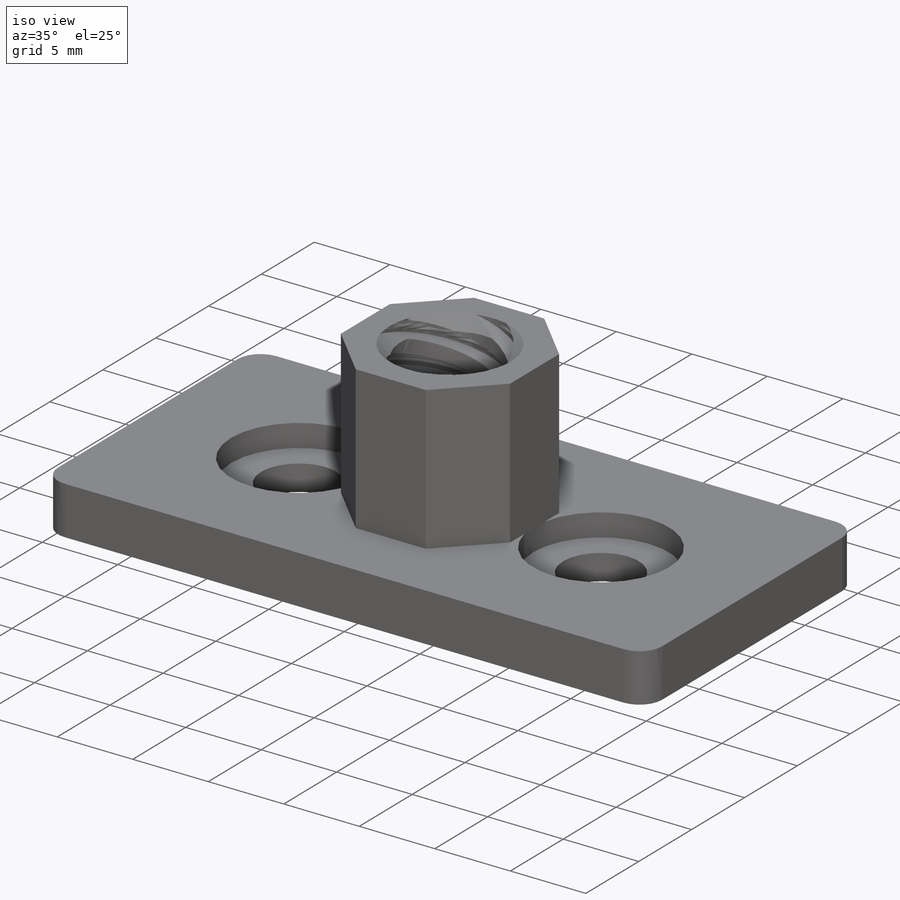
[diagram: iso view]
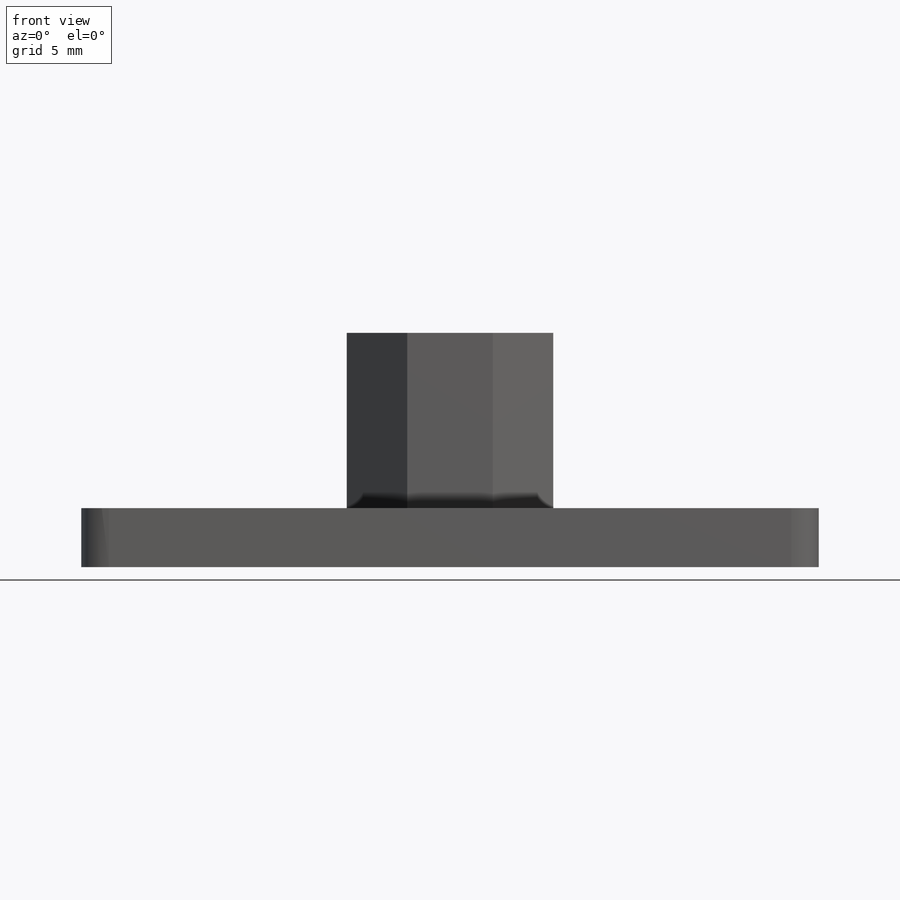
[diagram: front view]
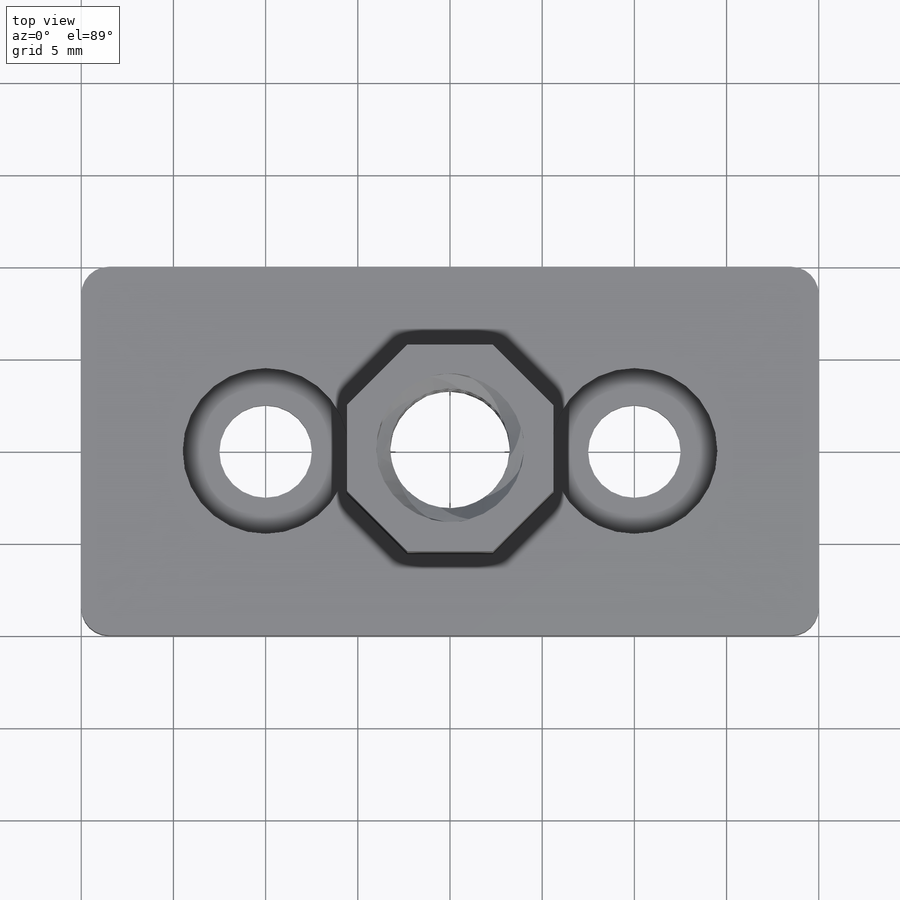
[diagram: top view]
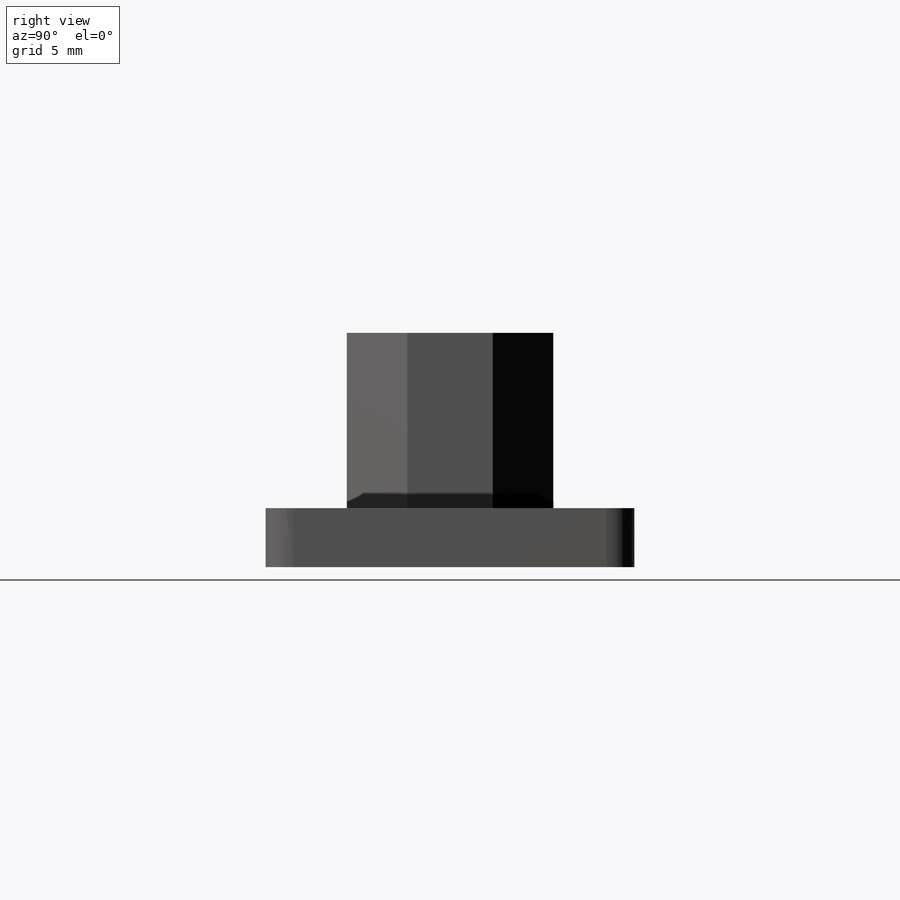
[diagram: right view]
SOLIDWORKS PART (.sldprt)
format: sldprt  version: not decoded by parser v0  size: 454,656 bytes
history: native  units: mm
features: sketch x7, cut_extrude x3, extrude x2, chamfer x2, material x1, fillet x1, plane x1, helix x1, sweep x1 (+13 scaffold rows collapsed)
feature tree (32):
  scaffold x13  (default folders/planes/origin — collapsed)
  material  "Material <not specified>"
  sketch  "Sketch1"  dims[D1=40.0mm D2=20.0mm]
  extrude  "Boss-Extrude1"  Depth=3.2mm
  fillet  "Fillet1"  Radius=1.5mm
  sketch  "Sketch2"  dims[D1=5.02mm D2=10.0mm D3=20.0mm]
  cut_extrude  "Cut-Extrude1"  Depth=3.2mm
  sketch  "Sketch3"  dims[D1=9.0mm]
  cut_extrude  "Cut-Extrude2"  Depth=1.5mm
  sketch  "Sketch4"  dims[D1=11.2mm]
  extrude  "Boss-Extrude2"  Depth=9.5mm
  sketch  "Sketch5"  dims[D1=6.4998mm]
  cut_extrude  "Cut-Extrude3"  [1 undecoded]
  chamfer  "Chamfer2"  Distance=0.75mm Angle=45deg
  chamfer  "Chamfer1"  Distance=0.75mm Angle=45deg
  plane  "Plane1"  Offset=2mm
  sketch  "Sketch6"
  helix  "Helix/Spiral1"  Pitch=40mm
  sketch  "Sketch7"
  sweep  "Cut-Sweep1"
decode coverage: 13 of 17 modeling features carry decoded parameters
note: 1 parameter value undecoded
note: suppression state not decoded; provenance and decode notes live in map.json
